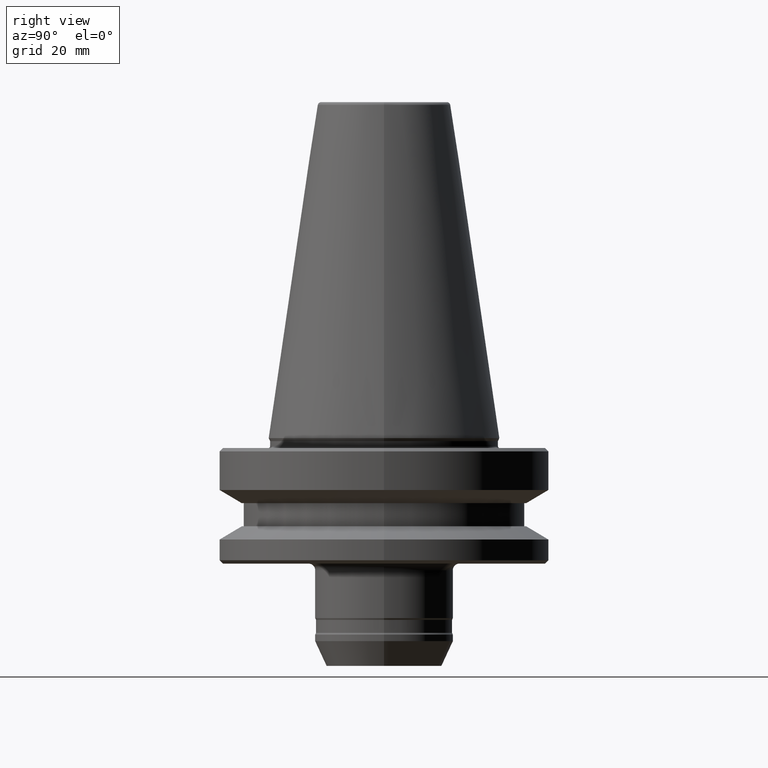
[diagram: clean part render]
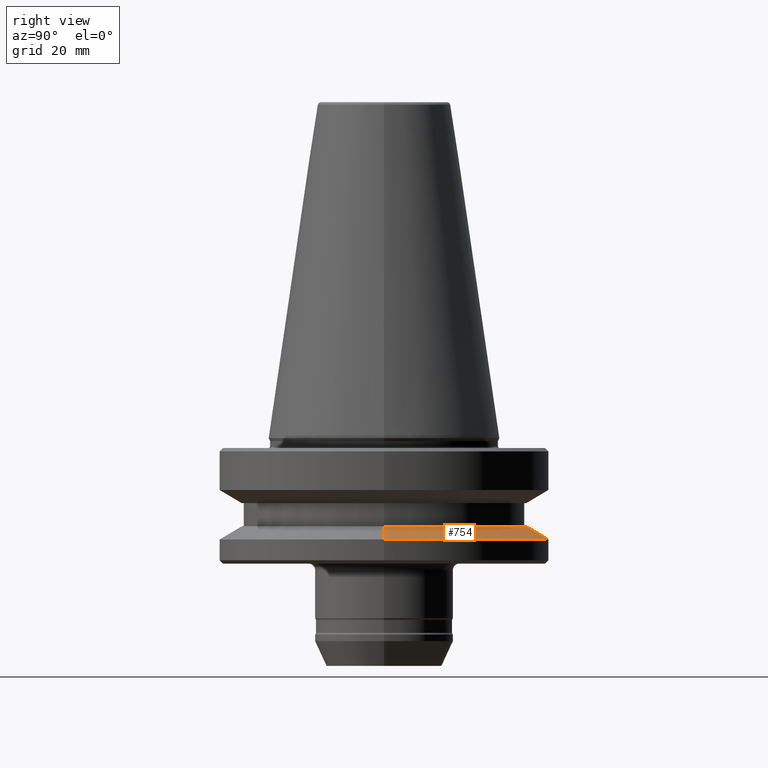
[diagram: same view with one face highlighted and labeled with its STEP entity id]
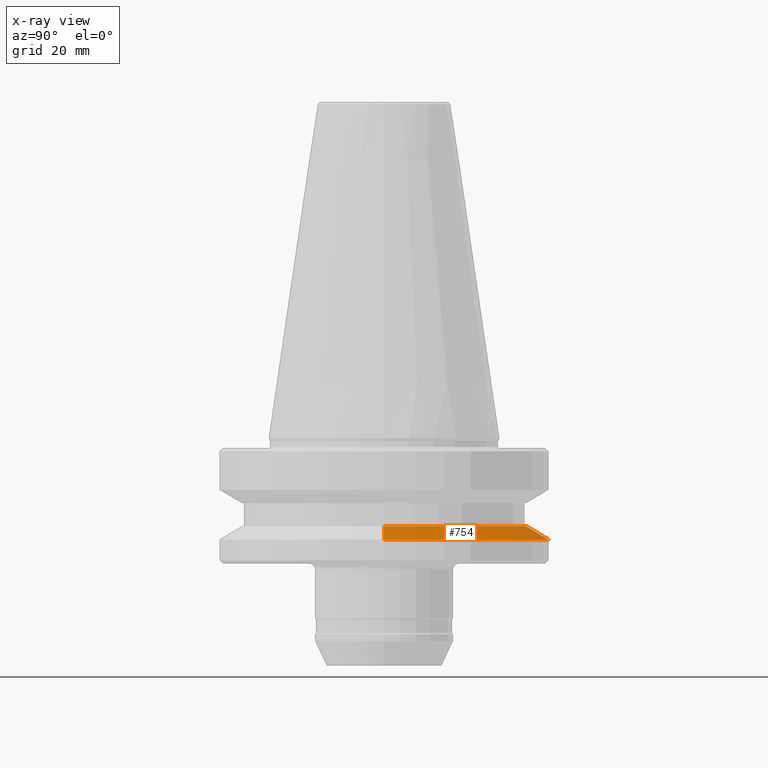
[diagram: x-ray of the same camera — body ghosted, the highlighted face saturated]
A machine part, right view. The second image highlights one B-rep face of the part: STEP entity #754.
The next image is the same camera in x-ray: the body ghosted, the highlighted face saturated — about 0% of this face is hidden behind the body in this view.
In plain terms, the highlighted conical surface has half-angle 60 deg.
Its self-contained STEP definition (entity closure, byte-faithful):
#174 = CIRCLE ( 'NONE', #1099, 49.99999999999982200 ) ;
#205 = CARTESIAN_POINT ( 'NONE',  ( 49.99999999999982200, 0.0000000000000000000, -30.69977999677475800 ) ) ;
#216 = CARTESIAN_POINT ( 'NONE',  ( -43.07217782648953600, 0.0000000000000000000, -26.70000000000061400 ) ) ;
#241 = VECTOR ( 'NONE', #904, 999.9999999999998900 ) ;
#243 = LINE ( 'NONE', #995, #241 ) ;
#278 = AXIS2_PLACEMENT_3D ( 'NONE', #934, #345, #1026 ) ;
#279 = CONICAL_SURFACE ( 'NONE', #577, 49.99999999999982200, 1.047197551196584800 ) ;
#290 = FACE_OUTER_BOUND ( 'NONE', #756, .T. ) ;
#325 = EDGE_CURVE ( 'NONE', #1018, #614, #430, .T. ) ;
#345 = DIRECTION ( 'NONE',  ( -0.0000000000000000000, -0.0000000000000000000, 1.000000000000000000 ) ) ;
#395 = CIRCLE ( 'NONE', #278, 43.07217782648953600 ) ;
#421 = VECTOR ( 'NONE', #869, 999.9999999999998900 ) ;
#430 = LINE ( 'NONE', #590, #421 ) ;
#443 = EDGE_CURVE ( 'NONE', #1018, #874, #395, .T. ) ;
#553 = CARTESIAN_POINT ( 'NONE',  ( 0.0000000000000000000, 0.0000000000000000000, -30.69977999677475800 ) ) ;
#575 = DIRECTION ( 'NONE',  ( -1.000000000000000000, 0.0000000000000000000, 0.0000000000000000000 ) ) ;
#577 = AXIS2_PLACEMENT_3D ( 'NONE', #959, #1196, #575 ) ;
#590 = CARTESIAN_POINT ( 'NONE',  ( 49.99999999999982200, 6.123233995736744000E-015, -30.69977999677475800 ) ) ;
#611 = ORIENTED_EDGE ( 'NONE', *, *, #325, .T. ) ;
#614 = VERTEX_POINT ( 'NONE', #205 ) ;
#649 = DIRECTION ( 'NONE',  ( 1.000000000000000000, 0.0000000000000000000, 0.0000000000000000000 ) ) ;
#662 = ORIENTED_EDGE ( 'NONE', *, *, #885, .F. ) ;
#689 = ORIENTED_EDGE ( 'NONE', *, *, #443, .F. ) ;
#740 = ORIENTED_EDGE ( 'NONE', *, *, #1122, .T. ) ;
#754 = ADVANCED_FACE ( 'NONE', ( #290 ), #279, .T. ) ;
#756 = EDGE_LOOP ( 'NONE', ( #689, #611, #740, #662 ) ) ;
#869 = DIRECTION ( 'NONE',  ( 0.8660254037844322700, 1.060575238724899000E-016, -0.5000000000000112100 ) ) ;
#874 = VERTEX_POINT ( 'NONE', #216 ) ;
#883 = VERTEX_POINT ( 'NONE', #1152 ) ;
#885 = EDGE_CURVE ( 'NONE', #874, #883, #243, .T. ) ;
#904 = DIRECTION ( 'NONE',  ( -0.8660254037844322700, 0.0000000000000000000, -0.5000000000000112100 ) ) ;
#934 = CARTESIAN_POINT ( 'NONE',  ( 0.0000000000000000000, 0.0000000000000000000, -26.70000000000061400 ) ) ;
#959 = CARTESIAN_POINT ( 'NONE',  ( 0.0000000000000000000, 0.0000000000000000000, -30.69977999677475800 ) ) ;
#995 = CARTESIAN_POINT ( 'NONE',  ( -49.99999999999982200, 0.0000000000000000000, -30.69977999677475800 ) ) ;
#1018 = VERTEX_POINT ( 'NONE', #1167 ) ;
#1026 = DIRECTION ( 'NONE',  ( 1.000000000000000000, 0.0000000000000000000, 0.0000000000000000000 ) ) ;
#1099 = AXIS2_PLACEMENT_3D ( 'NONE', #553, #1174, #649 ) ;
#1122 = EDGE_CURVE ( 'NONE', #614, #883, #174, .T. ) ;
#1152 = CARTESIAN_POINT ( 'NONE',  ( -49.99999999999982200, 6.123233995736744000E-015, -30.69977999677475800 ) ) ;
#1167 = CARTESIAN_POINT ( 'NONE',  ( 43.07217782648953600, 5.699027233244171900E-015, -26.70000000000061400 ) ) ;
#1174 = DIRECTION ( 'NONE',  ( -0.0000000000000000000, -0.0000000000000000000, 1.000000000000000000 ) ) ;
#1196 = DIRECTION ( 'NONE',  ( 0.0000000000000000000, 0.0000000000000000000, -1.000000000000000000 ) ) ;